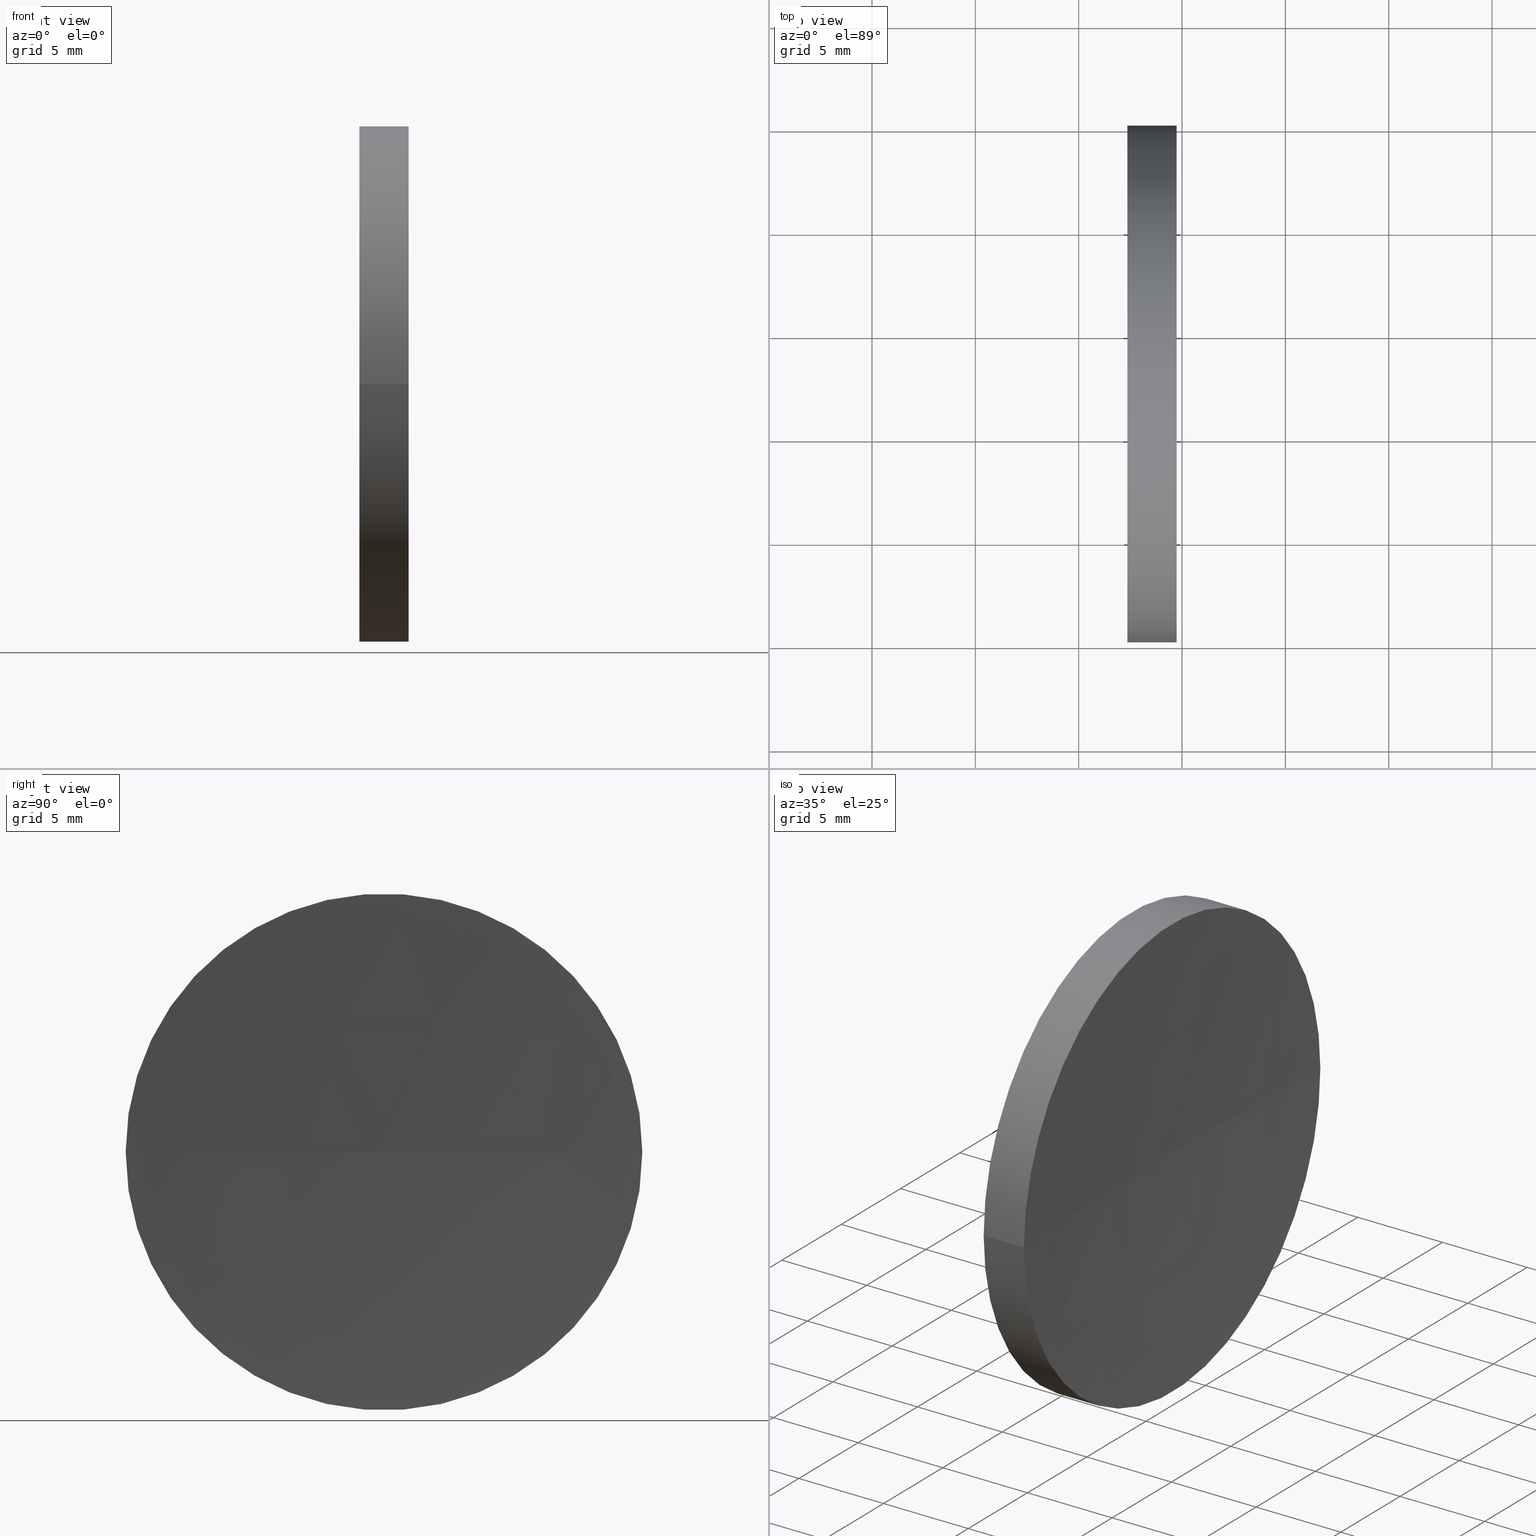
[diagram: canonical four-view strip — front | top / right | iso, engineering-drawing reading convention]
A machine part, canonical four-view strip (front | top / right | iso — engineering-drawing reading convention). The complete STEP part file that produces these views, byte-faithful:
ISO-10303-21;
HEADER;
FILE_DESCRIPTION (( 'STEP AP214' ),
    '1' );
FILE_NAME ('120160.STEP',
    '2019-06-20T07:49:58',
    ( '' ),
    ( '' ),
    'SwSTEP 2.0',
    'SolidWorks 2016',
    '' );
FILE_SCHEMA (( 'AUTOMOTIVE_DESIGN' ));
ENDSEC;

DATA;
#1 = APPLICATION_PROTOCOL_DEFINITION ( 'draft international standard', 'automotive_design', 1998, #152 ) ;
#2 = EDGE_CURVE ( 'NONE', #10, #25, #61, .T. ) ;
#3 = APPLICATION_PROTOCOL_DEFINITION ( 'draft international standard', 'automotive_design', 1998, #71 ) ;
#4 = DIRECTION ( 'NONE',  ( 1.000000000000000000, -7.636108817321419600E-016, 0.0000000000000000000 ) ) ;
#5 = AXIS2_PLACEMENT_3D ( 'NONE', #35, #67, #92 ) ;
#6 = VECTOR ( 'NONE', #164, 1000.000000000000000 ) ;
#7 = AXIS2_PLACEMENT_3D ( 'NONE', #66, #77, #22 ) ;
#8 = DIRECTION ( 'NONE',  ( 8.080225797854122700E-016, 1.000000000000000000, 0.0000000000000000000 ) ) ;
#9 = PRODUCT_DEFINITION ( 'δ֪', '', #53, #102 ) ;
#10 = VERTEX_POINT ( 'NONE', #140 ) ;
#11 = EDGE_CURVE ( 'NONE', #88, #25, #155, .T. ) ;
#12 =( NAMED_UNIT ( * ) PLANE_ANGLE_UNIT ( ) SI_UNIT ( $, .RADIAN. ) );
#13 = ORIENTED_EDGE ( 'NONE', *, *, #133, .T. ) ;
#14 = AXIS2_PLACEMENT_3D ( 'NONE', #23, #20, #104 ) ;
#15 = CARTESIAN_POINT ( 'NONE',  ( 57.35819015802111700, 45.07872591329309100, 1.530808498934191900E-015 ) ) ;
#16 = SURFACE_STYLE_FILL_AREA ( #98 ) ;
#17 = FILL_AREA_STYLE ('',( #87 ) ) ;
#18 = VERTEX_POINT ( 'NONE', #45 ) ;
#19 = ADVANCED_FACE ( 'NONE', ( #165 ), #37, .F. ) ;
#20 = DIRECTION ( 'NONE',  ( -1.000000000000000000, 7.636108817321419600E-016, -0.0000000000000000000 ) ) ;
#21 = LINE ( 'NONE', #56, #6 ) ;
#22 = DIRECTION ( 'NONE',  ( 1.000000000000000000, 0.0000000000000000000, 0.0000000000000000000 ) ) ;
#23 = CARTESIAN_POINT ( 'NONE',  ( 59.73760295294823000, 32.57872591329309100, 0.0000000000000000000 ) ) ;
#24 = FACE_OUTER_BOUND ( 'NONE', #110, .T. ) ;
#25 = VERTEX_POINT ( 'NONE', #117 ) ;
#26 =( GEOMETRIC_REPRESENTATION_CONTEXT ( 3 ) GLOBAL_UNCERTAINTY_ASSIGNED_CONTEXT ( ( #160 ) ) GLOBAL_UNIT_ASSIGNED_CONTEXT ( ( #43, #112, #150 ) ) REPRESENTATION_CONTEXT ( 'NONE', 'WORKASPACE' ) );
#27 = DIRECTION ( 'NONE',  ( -1.000000000000000000, 7.636108817321419600E-016, -0.0000000000000000000 ) ) ;
#28 = EDGE_CURVE ( 'NONE', #18, #159, #166, .T. ) ;
#29 = ADVANCED_BREP_SHAPE_REPRESENTATION ( '120160', ( #111, #109 ), #76 ) ;
#30 =( GEOMETRIC_REPRESENTATION_CONTEXT ( 3 ) GLOBAL_UNCERTAINTY_ASSIGNED_CONTEXT ( ( #38 ) ) GLOBAL_UNIT_ASSIGNED_CONTEXT ( ( #153, #99, #114 ) ) REPRESENTATION_CONTEXT ( 'NONE', 'WORKASPACE' ) );
#31 = ORIENTED_EDGE ( 'NONE', *, *, #133, .F. ) ;
#32 = ADVANCED_FACE ( 'NONE', ( #158 ), #96, .F. ) ;
#33 = PRESENTATION_LAYER_ASSIGNMENT (  '', '', ( #95 ) ) ;
#34 = DIRECTION ( 'NONE',  ( 8.080225797854122700E-016, 1.000000000000000000, 0.0000000000000000000 ) ) ;
#35 = CARTESIAN_POINT ( 'NONE',  ( 265.4581901580211300, 32.57872591329290700, 0.0000000000000000000 ) ) ;
#36 = EDGE_CURVE ( 'NONE', #10, #88, #51, .T. ) ;
#37 = SPHERICAL_SURFACE ( 'NONE', #103, 206.0999999999999900 ) ;
#38 = UNCERTAINTY_MEASURE_WITH_UNIT (LENGTH_MEASURE( 1.000000000000000100E-005 ), #153, 'distance_accuracy_value', 'NONE');
#39 = ORIENTED_EDGE ( 'NONE', *, *, #36, .T. ) ;
#40 = AXIS2_PLACEMENT_3D ( 'NONE', #72, #4, #126 ) ;
#41 = CARTESIAN_POINT ( 'NONE',  ( 0.0000000000000000000, 0.0000000000000000000, 0.0000000000000000000 ) ) ;
#42 = CARTESIAN_POINT ( 'NONE',  ( 59.73760295294821500, 45.07872591329273600, 0.0000000000000000000 ) ) ;
#43 =( LENGTH_UNIT ( ) NAMED_UNIT ( * ) SI_UNIT ( .MILLI., .METRE. ) );
#44 = DIRECTION ( 'NONE',  ( -1.000000000000000000, 7.636108817321419600E-016, -0.0000000000000000000 ) ) ;
#45 = CARTESIAN_POINT ( 'NONE',  ( 57.35819015802110200, 20.07872591329309800, 0.0000000000000000000 ) ) ;
#46 = ORIENTED_EDGE ( 'NONE', *, *, #162, .T. ) ;
#47 = AXIS2_PLACEMENT_3D ( 'NONE', #113, #44, #50 ) ;
#48 = FACE_OUTER_BOUND ( 'NONE', #124, .T. ) ;
#49 = DIRECTION ( 'NONE',  ( 1.000000000000000000, 0.0000000000000000000, 0.0000000000000000000 ) ) ;
#50 = DIRECTION ( 'NONE',  ( -5.551115123125782700E-016, -1.000000000000000000, 0.0000000000000000000 ) ) ;
#51 = CIRCLE ( 'NONE', #14, 12.50000000000000000 ) ;
#52 = UNCERTAINTY_MEASURE_WITH_UNIT (LENGTH_MEASURE( 1.000000000000000100E-005 ), #91, 'distance_accuracy_value', 'NONE');
#53 = PRODUCT_DEFINITION_FORMATION_WITH_SPECIFIED_SOURCE ( '�κ�', '', #139, .NOT_KNOWN. ) ;
#54 = DIRECTION ( 'NONE',  ( -5.551115123125784700E-016, -1.000000000000000000, 0.0000000000000000000 ) ) ;
#55 = DIRECTION ( 'NONE',  ( -5.551115123125782700E-016, -1.000000000000000000, 0.0000000000000000000 ) ) ;
#56 = CARTESIAN_POINT ( 'NONE',  ( 55.00739462442117400, 20.07872591329309500, 0.0000000000000000000 ) ) ;
#57 = ORIENTED_EDGE ( 'NONE', *, *, #162, .F. ) ;
#58 = SURFACE_STYLE_USAGE ( .BOTH. , #135 ) ;
#59 = FILL_AREA_STYLE_COLOUR ( '', #147 ) ;
#60 = SURFACE_STYLE_USAGE ( .BOTH. , #154 ) ;
#61 = CIRCLE ( 'NONE', #5, 206.0999999999999900 ) ;
#62 = PLANE ( 'NONE',  #40 ) ;
#63 = PRESENTATION_STYLE_ASSIGNMENT (( #58 ) ) ;
#64 = ORIENTED_EDGE ( 'NONE', *, *, #11, .F. ) ;
#65 = ADVANCED_FACE ( 'NONE', ( #108 ), #69, .T. ) ;
#66 = CARTESIAN_POINT ( 'NONE',  ( 265.4581901580211300, 32.57872591329290700, 0.0000000000000000000 ) ) ;
#67 = DIRECTION ( 'NONE',  ( 9.351536221073556900E-032, 1.224646799147353200E-016, -1.000000000000000000 ) ) ;
#68 = CLOSED_SHELL ( 'NONE', ( #75, #32, #19, #65, #101 ) ) ;
#69 = CYLINDRICAL_SURFACE ( 'NONE', #81, 12.50000000000000000 ) ;
#70 = PRESENTATION_LAYER_ASSIGNMENT (  '', '', ( #90 ) ) ;
#71 = APPLICATION_CONTEXT ( 'automotive_design' ) ;
#72 = CARTESIAN_POINT ( 'NONE',  ( 57.35819015802111000, 32.57872591329309100, 0.0000000000000000000 ) ) ;
#73 = LINE ( 'NONE', #132, #82 ) ;
#74 = EDGE_LOOP ( 'NONE', ( #79, #97, #64 ) ) ;
#75 = ADVANCED_FACE ( 'NONE', ( #48 ), #115, .T. ) ;
#76 =( GEOMETRIC_REPRESENTATION_CONTEXT ( 3 ) GLOBAL_UNCERTAINTY_ASSIGNED_CONTEXT ( ( #52 ) ) GLOBAL_UNIT_ASSIGNED_CONTEXT ( ( #91, #12, #84 ) ) REPRESENTATION_CONTEXT ( 'NONE', 'WORKASPACE' ) );
#77 = DIRECTION ( 'NONE',  ( 0.0000000000000000000, 0.0000000000000000000, 1.000000000000000000 ) ) ;
#78 = SURFACE_STYLE_FILL_AREA ( #17 ) ;
#79 = ORIENTED_EDGE ( 'NONE', *, *, #36, .F. ) ;
#80 = PRODUCT_DEFINITION_SHAPE ( 'NONE', 'NONE',  #9 ) ;
#81 = AXIS2_PLACEMENT_3D ( 'NONE', #119, #120, #55 ) ;
#82 = VECTOR ( 'NONE', #83, 1000.000000000000000 ) ;
#83 = DIRECTION ( 'NONE',  ( -1.000000000000000000, 7.636108817321419600E-016, -0.0000000000000000000 ) ) ;
#84 =( NAMED_UNIT ( * ) SI_UNIT ( $, .STERADIAN. ) SOLID_ANGLE_UNIT ( ) );
#85 = AXIS2_PLACEMENT_3D ( 'NONE', #106, #122, #54 ) ;
#86 = CARTESIAN_POINT ( 'NONE',  ( 57.35819015802111000, 32.57872591329309800, 0.0000000000000000000 ) ) ;
#87 = FILL_AREA_STYLE_COLOUR ( '', #143 ) ;
#88 = VERTEX_POINT ( 'NONE', #42 ) ;
#89 = DIRECTION ( 'NONE',  ( -1.000000000000000000, 7.636108817321419600E-016, -0.0000000000000000000 ) ) ;
#90 = STYLED_ITEM ( 'NONE', ( #121 ), #111 ) ;
#91 =( LENGTH_UNIT ( ) NAMED_UNIT ( * ) SI_UNIT ( .MILLI., .METRE. ) );
#92 = DIRECTION ( 'NONE',  ( 0.0000000000000000000, 1.000000000000000000, 1.224646799147353500E-016 ) ) ;
#93 = EDGE_LOOP ( 'NONE', ( #100, #148, #13, #57 ) ) ;
#94 = CARTESIAN_POINT ( 'NONE',  ( 265.4581901580211300, 32.57872591329290700, 0.0000000000000000000 ) ) ;
#95 = STYLED_ITEM ( 'NONE', ( #63 ), #29 ) ;
#96 = SPHERICAL_SURFACE ( 'NONE', #149, 206.0999999999999900 ) ;
#97 = ORIENTED_EDGE ( 'NONE', *, *, #2, .T. ) ;
#98 = FILL_AREA_STYLE ('',( #59 ) ) ;
#99 =( NAMED_UNIT ( * ) PLANE_ANGLE_UNIT ( ) SI_UNIT ( $, .RADIAN. ) );
#100 = ORIENTED_EDGE ( 'NONE', *, *, #146, .F. ) ;
#101 = ADVANCED_FACE ( 'NONE', ( #24 ), #62, .F. ) ;
#102 = PRODUCT_DEFINITION_CONTEXT ( 'detailed design', #152, 'design' ) ;
#103 = AXIS2_PLACEMENT_3D ( 'NONE', #105, #128, #8 ) ;
#104 = DIRECTION ( 'NONE',  ( -5.551115123125782700E-016, -1.000000000000000000, 0.0000000000000000000 ) ) ;
#105 = CARTESIAN_POINT ( 'NONE',  ( 265.4581901580211300, 32.57872591329290700, 0.0000000000000000000 ) ) ;
#106 = CARTESIAN_POINT ( 'NONE',  ( 57.35819015802111000, 32.57872591329309800, 0.0000000000000000000 ) ) ;
#107 = EDGE_LOOP ( 'NONE', ( #134, #116, #156 ) ) ;
#108 = FACE_OUTER_BOUND ( 'NONE', #93, .T. ) ;
#109 = AXIS2_PLACEMENT_3D ( 'NONE', #41, #127, #49 ) ;
#110 = EDGE_LOOP ( 'NONE', ( #130, #46 ) ) ;
#111 = MANIFOLD_SOLID_BREP ( '��ת1', #68 ) ;
#112 =( NAMED_UNIT ( * ) PLANE_ANGLE_UNIT ( ) SI_UNIT ( $, .RADIAN. ) );
#113 = CARTESIAN_POINT ( 'NONE',  ( 55.00739462442118100, 32.57872591329309800, 0.0000000000000000000 ) ) ;
#114 =( NAMED_UNIT ( * ) SI_UNIT ( $, .STERADIAN. ) SOLID_ANGLE_UNIT ( ) );
#115 = CYLINDRICAL_SURFACE ( 'NONE', #47, 12.50000000000000000 ) ;
#116 = ORIENTED_EDGE ( 'NONE', *, *, #137, .F. ) ;
#117 = CARTESIAN_POINT ( 'NONE',  ( 59.35819015802113100, 32.57872591329307700, 0.0000000000000000000 ) ) ;
#118 = CIRCLE ( 'NONE', #157, 12.50000000000000000 ) ;
#119 = CARTESIAN_POINT ( 'NONE',  ( 55.00739462442118100, 32.57872591329309800, 0.0000000000000000000 ) ) ;
#120 = DIRECTION ( 'NONE',  ( -1.000000000000000000, 7.636108817321419600E-016, -0.0000000000000000000 ) ) ;
#121 = PRESENTATION_STYLE_ASSIGNMENT (( #60 ) ) ;
#122 = DIRECTION ( 'NONE',  ( -1.000000000000000000, 7.636108817321419600E-016, -0.0000000000000000000 ) ) ;
#123 = ORIENTED_EDGE ( 'NONE', *, *, #146, .T. ) ;
#124 = EDGE_LOOP ( 'NONE', ( #39, #123, #144, #31 ) ) ;
#125 = PRODUCT_CONTEXT ( 'NONE', #71, 'mechanical' ) ;
#126 = DIRECTION ( 'NONE',  ( 7.636108817321419600E-016, 1.000000000000000000, 0.0000000000000000000 ) ) ;
#127 = DIRECTION ( 'NONE',  ( 0.0000000000000000000, 0.0000000000000000000, 1.000000000000000000 ) ) ;
#128 = DIRECTION ( 'NONE',  ( 0.0000000000000000000, 0.0000000000000000000, -1.000000000000000000 ) ) ;
#129 = CIRCLE ( 'NONE', #145, 12.49999999999999600 ) ;
#130 = ORIENTED_EDGE ( 'NONE', *, *, #28, .T. ) ;
#131 = DIRECTION ( 'NONE',  ( -5.551115123125782700E-016, -1.000000000000000000, 0.0000000000000000000 ) ) ;
#132 = CARTESIAN_POINT ( 'NONE',  ( 55.00739462442118800, 45.07872591329309100, 1.530808498934191500E-015 ) ) ;
#133 = EDGE_CURVE ( 'NONE', #10, #18, #21, .T. ) ;
#134 = ORIENTED_EDGE ( 'NONE', *, *, #2, .F. ) ;
#135 = SURFACE_SIDE_STYLE ('',( #16 ) ) ;
#136 = MECHANICAL_DESIGN_GEOMETRIC_PRESENTATION_REPRESENTATION (  '', ( #95 ), #26 ) ;
#137 = EDGE_CURVE ( 'NONE', #88, #10, #118, .T. ) ;
#138 = DIRECTION ( 'NONE',  ( -5.551115123125784700E-016, -1.000000000000000000, 0.0000000000000000000 ) ) ;
#139 = PRODUCT ( '120160', '120160', '', ( #125 ) ) ;
#140 = CARTESIAN_POINT ( 'NONE',  ( 59.73760295294820800, 20.07872591329342200, -1.530808498934147900E-015 ) ) ;
#141 = DIRECTION ( 'NONE',  ( 0.0000000000000000000, 0.0000000000000000000, -1.000000000000000000 ) ) ;
#142 = MECHANICAL_DESIGN_GEOMETRIC_PRESENTATION_REPRESENTATION (  '', ( #90 ), #30 ) ;
#143 = COLOUR_RGB ( '',1.000000000000000000, 1.000000000000000000, 1.000000000000000000 ) ;
#144 = ORIENTED_EDGE ( 'NONE', *, *, #28, .F. ) ;
#145 = AXIS2_PLACEMENT_3D ( 'NONE', #86, #89, #138 ) ;
#146 = EDGE_CURVE ( 'NONE', #88, #159, #73, .T. ) ;
#147 = COLOUR_RGB ( '',1.000000000000000000, 1.000000000000000000, 1.000000000000000000 ) ;
#148 = ORIENTED_EDGE ( 'NONE', *, *, #137, .T. ) ;
#149 = AXIS2_PLACEMENT_3D ( 'NONE', #94, #141, #34 ) ;
#150 =( NAMED_UNIT ( * ) SI_UNIT ( $, .STERADIAN. ) SOLID_ANGLE_UNIT ( ) );
#151 = SHAPE_DEFINITION_REPRESENTATION ( #80, #29 ) ;
#152 = APPLICATION_CONTEXT ( 'automotive_design' ) ;
#153 =( LENGTH_UNIT ( ) NAMED_UNIT ( * ) SI_UNIT ( .MILLI., .METRE. ) );
#154 = SURFACE_SIDE_STYLE ('',( #78 ) ) ;
#155 = CIRCLE ( 'NONE', #7, 206.0999999999999900 ) ;
#156 = ORIENTED_EDGE ( 'NONE', *, *, #11, .T. ) ;
#157 = AXIS2_PLACEMENT_3D ( 'NONE', #163, #27, #131 ) ;
#158 = FACE_OUTER_BOUND ( 'NONE', #74, .T. ) ;
#159 = VERTEX_POINT ( 'NONE', #15 ) ;
#160 = UNCERTAINTY_MEASURE_WITH_UNIT (LENGTH_MEASURE( 1.000000000000000100E-005 ), #43, 'distance_accuracy_value', 'NONE');
#161 = PRODUCT_RELATED_PRODUCT_CATEGORY ( 'part', '', ( #139 ) ) ;
#162 = EDGE_CURVE ( 'NONE', #159, #18, #129, .T. ) ;
#163 = CARTESIAN_POINT ( 'NONE',  ( 59.73760295294823000, 32.57872591329309100, 0.0000000000000000000 ) ) ;
#164 = DIRECTION ( 'NONE',  ( -1.000000000000000000, 7.636108817321419600E-016, -0.0000000000000000000 ) ) ;
#165 = FACE_OUTER_BOUND ( 'NONE', #107, .T. ) ;
#166 = CIRCLE ( 'NONE', #85, 12.49999999999999600 ) ;
ENDSEC;
END-ISO-10303-21;
